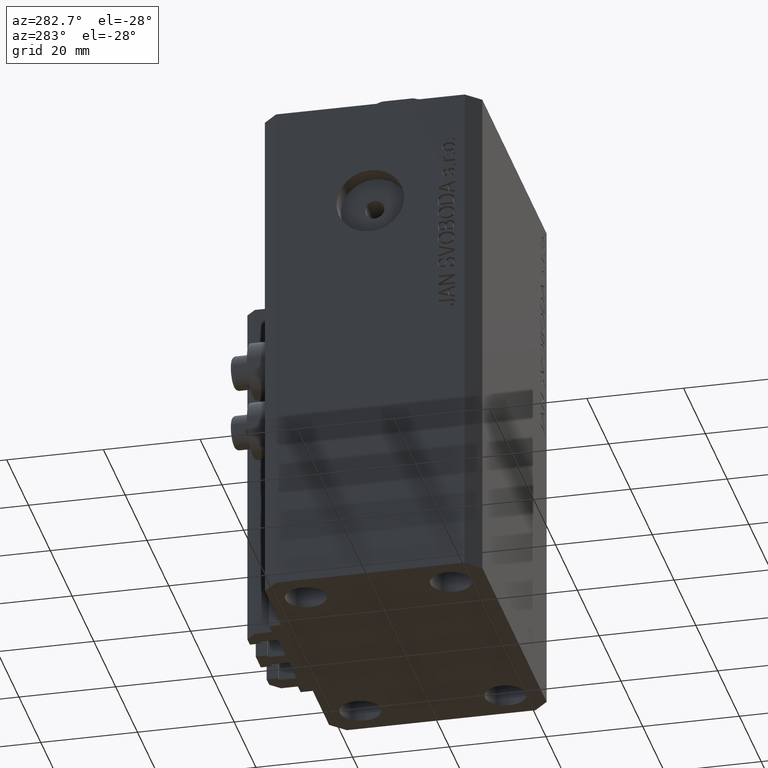
[diagram: clean part render]
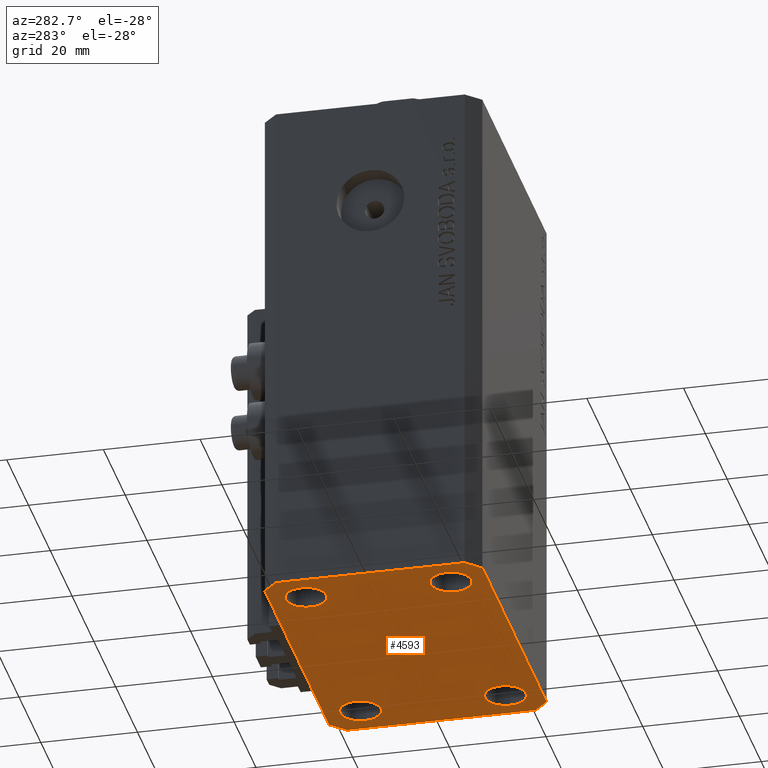
[diagram: same view with one face highlighted and labeled with its STEP entity id]
A machine part, auxiliary view. The second image highlights one B-rep face of the part: STEP entity #4593.
In plain terms, the highlighted planar face has unit normal (0, 0, 1).
Its self-contained STEP definition (entity closure, byte-faithful):
#120 = CARTESIAN_POINT ( 'NONE',  ( -29.49999999999650413, -22.49999999999949907, -107.0000000000000000 ) ) ;
#137 = CARTESIAN_POINT ( 'NONE',  ( -29.49999999999650413, 22.49999999999949907, -107.0000000000000000 ) ) ;
#288 = LINE ( 'NONE', #44180, #32270 ) ;
#526 = EDGE_LOOP ( 'NONE', ( #34701, #23315 ) ) ;
#692 = AXIS2_PLACEMENT_3D ( 'NONE', #4996, #8567, #27410 ) ;
#1060 = ORIENTED_EDGE ( 'NONE', *, *, #45115, .F. ) ;
#1566 = AXIS2_PLACEMENT_3D ( 'NONE', #2581, #24533, #3049 ) ;
#1605 = DIRECTION ( 'NONE',  ( 1.000000000000000000, 0.000000000000000000, 0.000000000000000000 ) ) ;
#1899 = CIRCLE ( 'NONE', #25500, 4.250000000021375790 ) ;
#2275 = VERTEX_POINT ( 'NONE', #5694 ) ;
#2581 = CARTESIAN_POINT ( 'NONE',  ( 25.00000000000000000, 14.99999999999999289, -107.0000000000000000 ) ) ;
#2660 = CARTESIAN_POINT ( 'NONE',  ( -29.25000000004036593, -15.00000000000000355, -107.0000000000000000 ) ) ;
#3049 = DIRECTION ( 'NONE',  ( 1.000000000000000000, 0.000000000000000000, 0.000000000000000000 ) ) ;
#3247 = VERTEX_POINT ( 'NONE', #5021 ) ;
#3334 = LINE ( 'NONE', #14546, #25778 ) ;
#3513 = CARTESIAN_POINT ( 'NONE',  ( 0.000000000000000000, 0.000000000000000000, -107.0000000000000000 ) ) ;
#3606 = VERTEX_POINT ( 'NONE', #7023 ) ;
#4099 = VERTEX_POINT ( 'NONE', #34368 ) ;
#4548 = DIRECTION ( 'NONE',  ( 1.000000000000000000, 0.000000000000000000, 0.000000000000000000 ) ) ;
#4593 = ADVANCED_FACE ( 'NONE', ( #43613, #22994, #44719, #29065, #30392 ), #39801, .F. ) ;
#4996 = CARTESIAN_POINT ( 'NONE',  ( 24.99999999999999289, -15.00000000000000355, -107.0000000000000000 ) ) ;
#5021 = CARTESIAN_POINT ( 'NONE',  ( 32.49999999999702993, 19.49999999999945999, -107.0000000000000000 ) ) ;
#5694 = CARTESIAN_POINT ( 'NONE',  ( -32.49999999999650413, 19.49999999999949907, -107.0000000000000000 ) ) ;
#6167 = VECTOR ( 'NONE', #25619, 1000.000000000000114 ) ;
#6298 = CIRCLE ( 'NONE', #32989, 4.250000000040370374 ) ;
#6483 = VERTEX_POINT ( 'NONE', #18420 ) ;
#6813 = CIRCLE ( 'NONE', #33488, 4.249999999957291053 ) ;
#6819 = DIRECTION ( 'NONE',  ( 1.000000000000000000, 0.000000000000000000, 0.000000000000000000 ) ) ;
#7023 = CARTESIAN_POINT ( 'NONE',  ( -29.49999999999650413, -22.49999999999949907, -107.0000000000000000 ) ) ;
#7031 = CARTESIAN_POINT ( 'NONE',  ( 20.75000000004271072, 14.99999999999999289, -107.0000000000000000 ) ) ;
#7326 = DIRECTION ( 'NONE',  ( 0.000000000000000000, 0.000000000000000000, 1.000000000000000000 ) ) ;
#7609 = VECTOR ( 'NONE', #32587, 1000.000000000000114 ) ;
#7787 = EDGE_CURVE ( 'NONE', #3247, #43555, #10198, .T. ) ;
#7908 = DIRECTION ( 'NONE',  ( -1.000000000000000000, -3.528251137580330676E-16, 0.000000000000000000 ) ) ;
#8322 = EDGE_CURVE ( 'NONE', #6483, #39348, #1899, .T. ) ;
#8567 = DIRECTION ( 'NONE',  ( -0.000000000000000000, -0.000000000000000000, -1.000000000000000000 ) ) ;
#9240 = DIRECTION ( 'NONE',  ( -0.7071067811865344721, 0.7071067811865606734, 0.000000000000000000 ) ) ;
#10051 = EDGE_LOOP ( 'NONE', ( #25542, #46867 ) ) ;
#10198 = LINE ( 'NONE', #34548, #31338 ) ;
#10268 = CARTESIAN_POINT ( 'NONE',  ( 20.75000000002367884, -15.00000000000000355, -107.0000000000000000 ) ) ;
#10387 = DIRECTION ( 'NONE',  ( 1.000000000000000000, 0.000000000000000000, 0.000000000000000000 ) ) ;
#10389 = CARTESIAN_POINT ( 'NONE',  ( -25.00000000000000000, 14.99999999999999645, -107.0000000000000000 ) ) ;
#11339 = EDGE_CURVE ( 'NONE', #19376, #19286, #17470, .T. ) ;
#12224 = LINE ( 'NONE', #37781, #18272 ) ;
#12635 = AXIS2_PLACEMENT_3D ( 'NONE', #3513, #7326, #36452 ) ;
#12637 = VERTEX_POINT ( 'NONE', #31306 ) ;
#12920 = EDGE_CURVE ( 'NONE', #25059, #12637, #6813, .T. ) ;
#13325 = ORIENTED_EDGE ( 'NONE', *, *, #41048, .F. ) ;
#13378 = EDGE_CURVE ( 'NONE', #3606, #38030, #13961, .T. ) ;
#13741 = CIRCLE ( 'NONE', #692, 4.249999999976314058 ) ;
#13961 = LINE ( 'NONE', #120, #32781 ) ;
#14189 = EDGE_CURVE ( 'NONE', #2275, #29222, #16178, .T. ) ;
#14308 = EDGE_CURVE ( 'NONE', #12637, #25059, #29014, .T. ) ;
#14510 = VECTOR ( 'NONE', #23351, 1000.000000000000000 ) ;
#14542 = DIRECTION ( 'NONE',  ( -0.000000000000000000, -0.000000000000000000, -1.000000000000000000 ) ) ;
#14546 = CARTESIAN_POINT ( 'NONE',  ( 29.49999999999650413, -22.49999999999949196, -107.0000000000000000 ) ) ;
#14776 = CARTESIAN_POINT ( 'NONE',  ( 29.49999999999650413, -22.49999999999949196, -107.0000000000000000 ) ) ;
#14875 = VERTEX_POINT ( 'NONE', #10268 ) ;
#15009 = ORIENTED_EDGE ( 'NONE', *, *, #14189, .F. ) ;
#15832 = VERTEX_POINT ( 'NONE', #137 ) ;
#16178 = LINE ( 'NONE', #23122, #14510 ) ;
#16582 = CARTESIAN_POINT ( 'NONE',  ( -29.25000000002137668, 14.99999999999999645, -107.0000000000000000 ) ) ;
#16961 = EDGE_LOOP ( 'NONE', ( #44749, #19873, #45656, #43901, #36474, #21558, #15009, #1060 ) ) ;
#17470 = CIRCLE ( 'NONE', #30423, 4.250000000040370374 ) ;
#18023 = LINE ( 'NONE', #35702, #7609 ) ;
#18272 = VECTOR ( 'NONE', #34190, 1000.000000000000000 ) ;
#18413 = VERTEX_POINT ( 'NONE', #44409 ) ;
#18420 = CARTESIAN_POINT ( 'NONE',  ( -20.74999999997862687, 14.99999999999999645, -107.0000000000000000 ) ) ;
#19286 = VERTEX_POINT ( 'NONE', #2660 ) ;
#19376 = VERTEX_POINT ( 'NONE', #33309 ) ;
#19712 = CARTESIAN_POINT ( 'NONE',  ( 29.49999999999707967, 22.49999999999952038, -107.0000000000000000 ) ) ;
#19873 = ORIENTED_EDGE ( 'NONE', *, *, #7787, .F. ) ;
#20264 = EDGE_CURVE ( 'NONE', #19286, #19376, #6298, .T. ) ;
#21558 = ORIENTED_EDGE ( 'NONE', *, *, #40230, .F. ) ;
#21585 = EDGE_CURVE ( 'NONE', #43555, #15832, #288, .T. ) ;
#22030 = CARTESIAN_POINT ( 'NONE',  ( -29.49999999999650413, 22.49999999999949907, -107.0000000000000000 ) ) ;
#22438 = AXIS2_PLACEMENT_3D ( 'NONE', #29811, #14542, #40318 ) ;
#22994 = FACE_BOUND ( 'NONE', #28495, .T. ) ;
#23122 = CARTESIAN_POINT ( 'NONE',  ( -32.49999999999650413, 19.49999999999949907, -107.0000000000000000 ) ) ;
#23315 = ORIENTED_EDGE ( 'NONE', *, *, #12920, .F. ) ;
#23351 = DIRECTION ( 'NONE',  ( 0.000000000000000000, -1.000000000000000000, 0.000000000000000000 ) ) ;
#24533 = DIRECTION ( 'NONE',  ( -0.000000000000000000, -0.000000000000000000, -1.000000000000000000 ) ) ;
#24897 = AXIS2_PLACEMENT_3D ( 'NONE', #37256, #44882, #4548 ) ;
#25059 = VERTEX_POINT ( 'NONE', #7031 ) ;
#25500 = AXIS2_PLACEMENT_3D ( 'NONE', #10389, #43979, #6819 ) ;
#25542 = ORIENTED_EDGE ( 'NONE', *, *, #11339, .F. ) ;
#25619 = DIRECTION ( 'NONE',  ( -0.7071067811865474617, -0.7071067811865474617, 0.000000000000000000 ) ) ;
#25778 = VECTOR ( 'NONE', #43203, 1000.000000000000000 ) ;
#26924 = CARTESIAN_POINT ( 'NONE',  ( -32.49999999999650413, -19.49999999999949907, -107.0000000000000000 ) ) ;
#27253 = EDGE_LOOP ( 'NONE', ( #44032, #36513 ) ) ;
#27410 = DIRECTION ( 'NONE',  ( 1.000000000000000000, 0.000000000000000000, 0.000000000000000000 ) ) ;
#28495 = EDGE_LOOP ( 'NONE', ( #13325, #40063 ) ) ;
#28984 = EDGE_CURVE ( 'NONE', #14875, #4099, #34622, .T. ) ;
#29014 = CIRCLE ( 'NONE', #1566, 4.249999999957291053 ) ;
#29065 = FACE_BOUND ( 'NONE', #27253, .T. ) ;
#29222 = VERTEX_POINT ( 'NONE', #26924 ) ;
#29811 = CARTESIAN_POINT ( 'NONE',  ( 24.99999999999999289, -15.00000000000000355, -107.0000000000000000 ) ) ;
#30392 = FACE_OUTER_BOUND ( 'NONE', #16961, .T. ) ;
#30423 = AXIS2_PLACEMENT_3D ( 'NONE', #35705, #43108, #10387 ) ;
#31241 = CARTESIAN_POINT ( 'NONE',  ( 25.00000000000000000, 14.99999999999999289, -107.0000000000000000 ) ) ;
#31306 = CARTESIAN_POINT ( 'NONE',  ( 29.24999999995729283, 14.99999999999999289, -107.0000000000000000 ) ) ;
#31338 = VECTOR ( 'NONE', #9240, 1000.000000000000000 ) ;
#32270 = VECTOR ( 'NONE', #7908, 1000.000000000000000 ) ;
#32587 = DIRECTION ( 'NONE',  ( 0.7071067811865474617, -0.7071067811865474617, 0.000000000000000000 ) ) ;
#32781 = VECTOR ( 'NONE', #39985, 1000.000000000000000 ) ;
#32989 = AXIS2_PLACEMENT_3D ( 'NONE', #38119, #45281, #1605 ) ;
#33309 = CARTESIAN_POINT ( 'NONE',  ( -20.74999999995962341, -15.00000000000000355, -107.0000000000000000 ) ) ;
#33488 = AXIS2_PLACEMENT_3D ( 'NONE', #31241, #44865, #45566 ) ;
#34052 = CIRCLE ( 'NONE', #24897, 4.250000000021375790 ) ;
#34190 = DIRECTION ( 'NONE',  ( 1.334402673828349134E-14, 1.000000000000000000, 0.000000000000000000 ) ) ;
#34368 = CARTESIAN_POINT ( 'NONE',  ( 29.24999999997631051, -15.00000000000000355, -107.0000000000000000 ) ) ;
#34548 = CARTESIAN_POINT ( 'NONE',  ( 32.49999999999702993, 19.49999999999945999, -107.0000000000000000 ) ) ;
#34622 = CIRCLE ( 'NONE', #22438, 4.249999999976314058 ) ;
#34682 = EDGE_CURVE ( 'NONE', #39348, #6483, #34052, .T. ) ;
#34701 = ORIENTED_EDGE ( 'NONE', *, *, #14308, .F. ) ;
#35702 = CARTESIAN_POINT ( 'NONE',  ( -32.49999999999650413, -19.49999999999949907, -107.0000000000000000 ) ) ;
#35705 = CARTESIAN_POINT ( 'NONE',  ( -24.99999999999999289, -15.00000000000000355, -107.0000000000000000 ) ) ;
#36452 = DIRECTION ( 'NONE',  ( 1.000000000000000000, 0.000000000000000000, -0.000000000000000000 ) ) ;
#36474 = ORIENTED_EDGE ( 'NONE', *, *, #13378, .F. ) ;
#36513 = ORIENTED_EDGE ( 'NONE', *, *, #34682, .F. ) ;
#37256 = CARTESIAN_POINT ( 'NONE',  ( -25.00000000000000000, 14.99999999999999645, -107.0000000000000000 ) ) ;
#37781 = CARTESIAN_POINT ( 'NONE',  ( 32.49999999999651124, -19.49999999999949196, -107.0000000000000000 ) ) ;
#38030 = VERTEX_POINT ( 'NONE', #14776 ) ;
#38119 = CARTESIAN_POINT ( 'NONE',  ( -24.99999999999999289, -15.00000000000000355, -107.0000000000000000 ) ) ;
#38873 = EDGE_CURVE ( 'NONE', #38030, #18413, #3334, .T. ) ;
#39348 = VERTEX_POINT ( 'NONE', #16582 ) ;
#39801 = PLANE ( 'NONE',  #12635 ) ;
#39985 = DIRECTION ( 'NONE',  ( 1.000000000000000000, 1.176083712526788232E-16, 0.000000000000000000 ) ) ;
#40063 = ORIENTED_EDGE ( 'NONE', *, *, #28984, .F. ) ;
#40230 = EDGE_CURVE ( 'NONE', #29222, #3606, #18023, .T. ) ;
#40318 = DIRECTION ( 'NONE',  ( 1.000000000000000000, 0.000000000000000000, 0.000000000000000000 ) ) ;
#41048 = EDGE_CURVE ( 'NONE', #4099, #14875, #13741, .T. ) ;
#42685 = EDGE_CURVE ( 'NONE', #18413, #3247, #12224, .T. ) ;
#43108 = DIRECTION ( 'NONE',  ( -0.000000000000000000, -0.000000000000000000, -1.000000000000000000 ) ) ;
#43203 = DIRECTION ( 'NONE',  ( 0.7071067811865483499, 0.7071067811865466846, 0.000000000000000000 ) ) ;
#43555 = VERTEX_POINT ( 'NONE', #19712 ) ;
#43613 = FACE_BOUND ( 'NONE', #10051, .T. ) ;
#43901 = ORIENTED_EDGE ( 'NONE', *, *, #38873, .F. ) ;
#43979 = DIRECTION ( 'NONE',  ( -0.000000000000000000, -0.000000000000000000, -1.000000000000000000 ) ) ;
#44032 = ORIENTED_EDGE ( 'NONE', *, *, #8322, .F. ) ;
#44180 = CARTESIAN_POINT ( 'NONE',  ( 29.49999999999707967, 22.49999999999952038, -107.0000000000000000 ) ) ;
#44409 = CARTESIAN_POINT ( 'NONE',  ( 32.49999999999651124, -19.49999999999949196, -107.0000000000000000 ) ) ;
#44719 = FACE_BOUND ( 'NONE', #526, .T. ) ;
#44749 = ORIENTED_EDGE ( 'NONE', *, *, #21585, .F. ) ;
#44865 = DIRECTION ( 'NONE',  ( -0.000000000000000000, -0.000000000000000000, -1.000000000000000000 ) ) ;
#44882 = DIRECTION ( 'NONE',  ( -0.000000000000000000, -0.000000000000000000, -1.000000000000000000 ) ) ;
#45115 = EDGE_CURVE ( 'NONE', #15832, #2275, #47110, .T. ) ;
#45281 = DIRECTION ( 'NONE',  ( -0.000000000000000000, -0.000000000000000000, -1.000000000000000000 ) ) ;
#45566 = DIRECTION ( 'NONE',  ( 1.000000000000000000, 0.000000000000000000, 0.000000000000000000 ) ) ;
#45656 = ORIENTED_EDGE ( 'NONE', *, *, #42685, .F. ) ;
#46867 = ORIENTED_EDGE ( 'NONE', *, *, #20264, .F. ) ;
#47110 = LINE ( 'NONE', #22030, #6167 ) ;